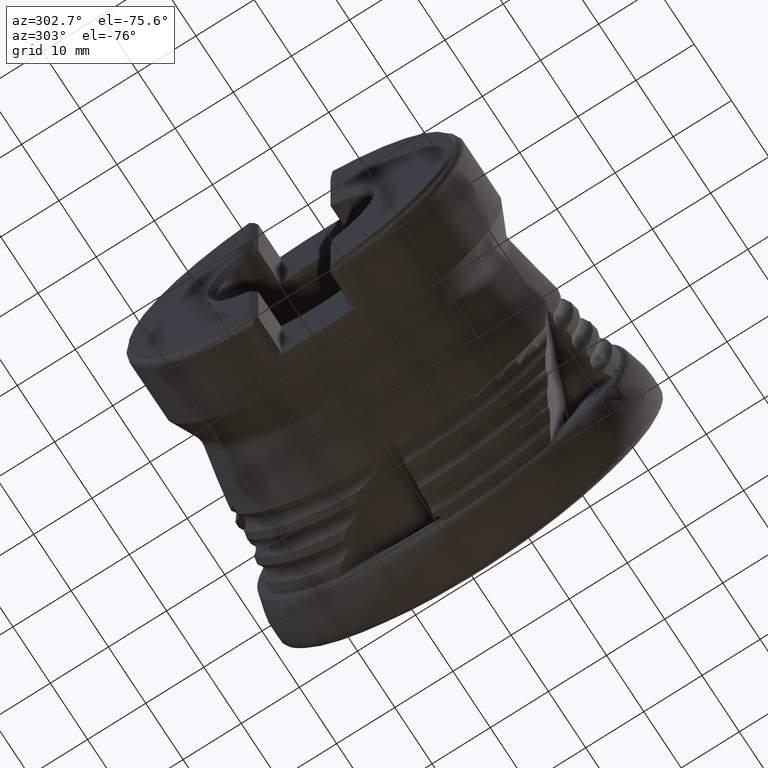
[diagram: clean part render]
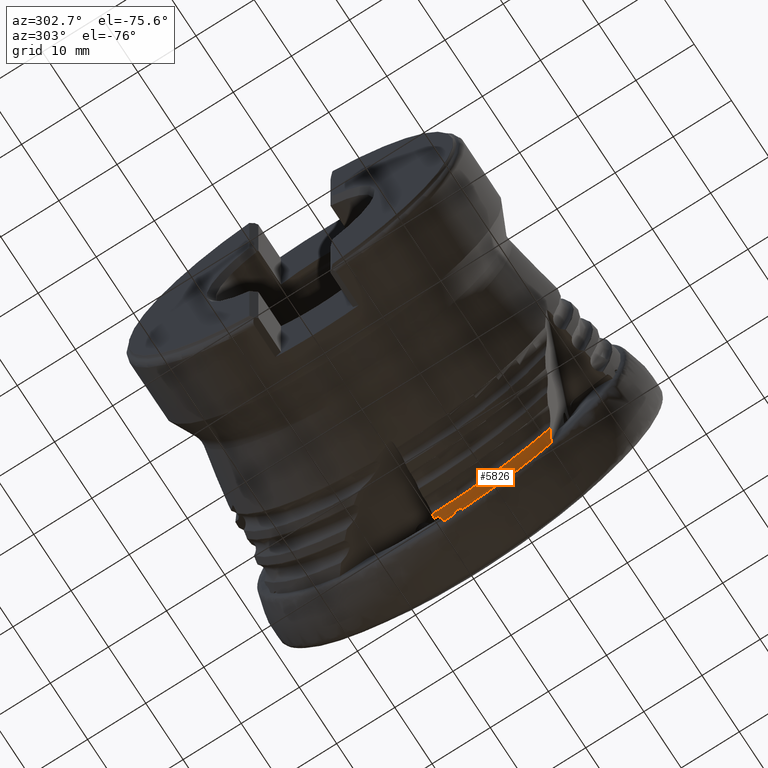
[diagram: same view with one face highlighted and labeled with its STEP entity id]
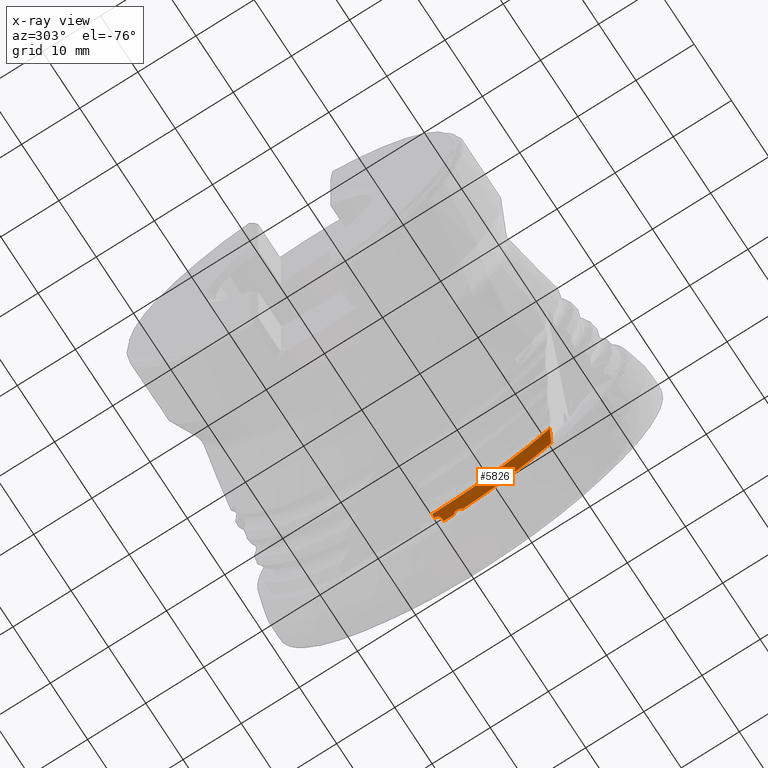
[diagram: x-ray of the same camera — body ghosted, the highlighted face saturated]
A machine part, auxiliary view. The second image highlights one B-rep face of the part: STEP entity #5826.
The next image is the same camera in x-ray: the body ghosted, the highlighted face saturated — about 0% of this face is hidden behind the body in this view.
In plain terms, the highlighted conical surface has half-angle 10.764 deg.
Its self-contained STEP definition (entity closure, byte-faithful):
#48 = CARTESIAN_POINT ( 'NONE',  ( -8.907187607036226100, -0.4925337859918906800, -30.94311440720431600 ) ) ;
#107 = CONICAL_SURFACE ( 'NONE', #2814, 31.10999999999999900, 0.1878754195888589200 ) ;
#133 = VERTEX_POINT ( 'NONE', #10110 ) ;
#525 = CARTESIAN_POINT ( 'NONE',  ( -9.168861643509844200, -2.840369341442003000, -30.76678678565905000 ) ) ;
#602 = CARTESIAN_POINT ( 'NONE',  ( -9.901042179049916600, 0.2399226507166629100, -30.75714860528538400 ) ) ;
#631 = CARTESIAN_POINT ( 'NONE',  ( -8.829917854519301600, -3.741871356822218600, -30.73478072638814500 ) ) ;
#728 = CARTESIAN_POINT ( 'NONE',  ( -9.914278806200638200, 0.4394854351953586000, -30.75242763919932900 ) ) ;
#749 = EDGE_CURVE ( 'NONE', #3368, #133, #5546, .T. ) ;
#879 = CARTESIAN_POINT ( 'NONE',  ( -10.52494134240437500, -19.84805109655290100, -23.34163660555354600 ) ) ;
#909 = CIRCLE ( 'NONE', #5861, 30.96172391114821900 ) ;
#1021 = CARTESIAN_POINT ( 'NONE',  ( -10.52494134240438100, 0.0000000000000000000, 0.0000000000000000000 ) ) ;
#1229 = CARTESIAN_POINT ( 'NONE',  ( -9.901042179049916600, 0.2399226507166629100, -30.75714860528538400 ) ) ;
#1368 = CARTESIAN_POINT ( 'NONE',  ( -9.138202026350185700, -3.268629727231398400, -30.73003867543300100 ) ) ;
#1419 = AXIS2_PLACEMENT_3D ( 'NONE', #1021, #7028, #1871 ) ;
#1451 = EDGE_CURVE ( 'NONE', #6334, #8030, #11168, .T. ) ;
#1785 = CARTESIAN_POINT ( 'NONE',  ( -9.061726263248795400, -0.5033401815428679700, -30.91355559229241100 ) ) ;
#1871 = DIRECTION ( 'NONE',  ( 0.0000000000000000000, 0.0000000000000000000, -1.000000000000000000 ) ) ;
#2083 = CARTESIAN_POINT ( 'NONE',  ( -9.866610701017775000, 0.03247187981194147400, -30.76475641392269700 ) ) ;
#2228 = CARTESIAN_POINT ( 'NONE',  ( -8.935586956124522500, -3.647118482185248500, -30.72607872427344600 ) ) ;
#2338 = B_SPLINE_CURVE_WITH_KNOTS ( 'NONE', 3,
 ( #1229, #6388, #2083, #8122, #2945, #8983, #3806, #9842 ),
 .UNSPECIFIED., .F., .F.,
 ( 4, 2, 2, 4 ),
 ( 3.577867169202164600E-018, 0.0003125698558297747300, 0.0006251397116595461100, 0.001250279423319089800 ),
 .UNSPECIFIED. ) ;
#2388 = DIRECTION ( 'NONE',  ( 1.000000000000000000, 3.736410698672604400E-015, -0.0000000000000000000 ) ) ;
#2441 = DIRECTION ( 'NONE',  ( 1.000000000000000000, 3.736410698672604400E-015, -0.0000000000000000000 ) ) ;
#2569 = CARTESIAN_POINT ( 'NONE',  ( -8.829917854519248300, -18.99229175526006600, -24.45242731168517700 ) ) ;
#2814 = AXIS2_PLACEMENT_3D ( 'NONE', #7649, #6844, #7729 ) ;
#2945 = CARTESIAN_POINT ( 'NONE',  ( -9.710373210912232300, -0.2397032762371657200, -30.79347692279681000 ) ) ;
#2972 = VERTEX_POINT ( 'NONE', #631 ) ;
#3368 = VERTEX_POINT ( 'NONE', #5279 ) ;
#3446 = EDGE_CURVE ( 'NONE', #4203, #2972, #909, .T. ) ;
#3471 = ORIENTED_EDGE ( 'NONE', *, *, #4285, .F. ) ;
#3582 = EDGE_CURVE ( 'NONE', #8030, #133, #9220, .T. ) ;
#3805 = ORIENTED_EDGE ( 'NONE', *, *, #8949, .F. ) ;
#3806 = CARTESIAN_POINT ( 'NONE',  ( -9.268852852633154200, -0.5178238836072460700, -30.87393614228257700 ) ) ;
#3995 = CARTESIAN_POINT ( 'NONE',  ( -9.905486636041716900, 0.3064485073215248400, -30.75578467198907300 ) ) ;
#4111 = EDGE_CURVE ( 'NONE', #9617, #2972, #4160, .T. ) ;
#4160 = B_SPLINE_CURVE_WITH_KNOTS ( 'NONE', 3,
 ( #9092, #4783, #10828, #5656, #525, #6531, #1368, #7387, #2228, #8275 ),
 .UNSPECIFIED., .F., .F.,
 ( 4, 2, 2, 2, 4 ),
 ( 0.0008497964193301971900, 0.001276275197781202800, 0.001702753976232208300, 0.002129232754683213900, 0.002555711533134219500 ),
 .UNSPECIFIED. ) ;
#4203 = VERTEX_POINT ( 'NONE', #5773 ) ;
#4268 = CARTESIAN_POINT ( 'NONE',  ( -10.52494134240438100, 0.3967837508653000400, -30.63690086174092300 ) ) ;
#4285 = EDGE_CURVE ( 'NONE', #9617, #6871, #6820, .T. ) ;
#4442 = CARTESIAN_POINT ( 'NONE',  ( -9.061726263248795400, -0.5033401815428679700, -30.91355559229241100 ) ) ;
#4590 = ORIENTED_EDGE ( 'NONE', *, *, #6455, .F. ) ;
#4783 = CARTESIAN_POINT ( 'NONE',  ( -8.935425067085956700, -2.326477001230511400, -30.85421891155813200 ) ) ;
#5020 = ORIENTED_EDGE ( 'NONE', *, *, #1451, .F. ) ;
#5148 = B_SPLINE_CURVE_WITH_KNOTS ( 'NONE', 3,
 ( #10344, #48, #6936, #1785 ),
 .UNSPECIFIED., .F., .F.,
 ( 4, 4 ),
 ( 0.0005540647907905239400, 0.0007906309979566094500 ),
 .UNSPECIFIED. ) ;
#5157 = ORIENTED_EDGE ( 'NONE', *, *, #10472, .T. ) ;
#5248 = ORIENTED_EDGE ( 'NONE', *, *, #3582, .F. ) ;
#5279 = CARTESIAN_POINT ( 'NONE',  ( -10.52494134240437500, -19.84805109655290100, -23.34163660555354600 ) ) ;
#5546 = CIRCLE ( 'NONE', #1419, 30.63947016116780700 ) ;
#5656 = CARTESIAN_POINT ( 'NONE',  ( -9.138288067966676900, -2.699220917138946500, -30.78526463999691400 ) ) ;
#5773 = CARTESIAN_POINT ( 'NONE',  ( -8.829917854519248300, -18.99229175526006600, -24.45242731168517700 ) ) ;
#5784 = ORIENTED_EDGE ( 'NONE', *, *, #749, .T. ) ;
#5826 = ADVANCED_FACE ( 'NONE', ( #7207 ), #107, .T. ) ;
#5861 = AXIS2_PLACEMENT_3D ( 'NONE', #7557, #2388, #8435 ) ;
#6016 = CARTESIAN_POINT ( 'NONE',  ( -9.976775338434958200, -19.56899443398506100, -23.71572578157927300 ) ) ;
#6118 =( BOUNDED_CURVE ( )  B_SPLINE_CURVE ( 3, ( #879, #6016, #7752, #2569 ),
 .UNSPECIFIED., .F., .T. ) 
 B_SPLINE_CURVE_WITH_KNOTS ( ( 4, 4 ),
 ( 3.577104302579109200, 3.605859837077168200 ),
 .UNSPECIFIED. ) 
 CURVE ( )  GEOMETRIC_REPRESENTATION_ITEM ( )  RATIONAL_B_SPLINE_CURVE ( ( 1.000000000000000000, 0.9999310944566703900, 0.9999310944566703900, 1.000000000000000000 ) ) 
 REPRESENTATION_ITEM ( '' )  );
#6202 = CARTESIAN_POINT ( 'NONE',  ( -9.914278806200638200, 0.4394854351953586000, -30.75242763919932900 ) ) ;
#6334 = VERTEX_POINT ( 'NONE', #9325 ) ;
#6388 = CARTESIAN_POINT ( 'NONE',  ( -9.893998405684815400, 0.1344895105809404100, -30.75931022751324700 ) ) ;
#6455 = EDGE_CURVE ( 'NONE', #6871, #7459, #5148, .T. ) ;
#6531 = CARTESIAN_POINT ( 'NONE',  ( -9.168855269367925900, -3.126516908677580400, -30.73902786385200900 ) ) ;
#6599 = CARTESIAN_POINT ( 'NONE',  ( -9.914278806200638200, 0.4394854351953586000, -30.75242763919932900 ) ) ;
#6775 = ORIENTED_EDGE ( 'NONE', *, *, #4111, .T. ) ;
#6820 = CIRCLE ( 'NONE', #9465, 30.96172391114821900 ) ;
#6844 = DIRECTION ( 'NONE',  ( 1.000000000000000000, -0.0000000000000000000, -0.0000000000000000000 ) ) ;
#6871 = VERTEX_POINT ( 'NONE', #7621 ) ;
#6936 = CARTESIAN_POINT ( 'NONE',  ( -8.984457077044957900, -0.4979369936901652500, -30.92833574518926200 ) ) ;
#7028 = DIRECTION ( 'NONE',  ( 1.000000000000000000, -0.0000000000000000000, -0.0000000000000000000 ) ) ;
#7038 = EDGE_LOOP ( 'NONE', ( #7838, #3805, #5784, #5248, #5020, #5157, #4590, #3471, #6775 ) ) ;
#7207 = FACE_OUTER_BOUND ( 'NONE', #7038, .T. ) ;
#7387 = CARTESIAN_POINT ( 'NONE',  ( -9.021999422848876900, -3.528583377935763800, -30.72351278033957900 ) ) ;
#7459 = VERTEX_POINT ( 'NONE', #4442 ) ;
#7557 = CARTESIAN_POINT ( 'NONE',  ( -8.829917854519314000, -3.299219954002622000E-014, 0.0000000000000000000 ) ) ;
#7617 = CARTESIAN_POINT ( 'NONE',  ( -8.829917854519314000, -3.299219954002622000E-014, 0.0000000000000000000 ) ) ;
#7621 = CARTESIAN_POINT ( 'NONE',  ( -8.829917854519308700, -0.4871305585387197300, -30.95789158468490500 ) ) ;
#7649 = CARTESIAN_POINT ( 'NONE',  ( -8.049999999999993600, 0.0000000000000000000, 0.0000000000000000000 ) ) ;
#7729 = DIRECTION ( 'NONE',  ( 0.0000000000000000000, 0.0000000000000000000, -1.000000000000000000 ) ) ;
#7752 = CARTESIAN_POINT ( 'NONE',  ( -9.411728574285614700, -19.28372166334552400, -24.08601486526031400 ) ) ;
#7838 = ORIENTED_EDGE ( 'NONE', *, *, #3446, .F. ) ;
#8030 = VERTEX_POINT ( 'NONE', #6202 ) ;
#8122 = CARTESIAN_POINT ( 'NONE',  ( -9.774717636882691400, -0.1552746182910289800, -30.78185232803812000 ) ) ;
#8275 = CARTESIAN_POINT ( 'NONE',  ( -8.829917854519301600, -3.741871356822218600, -30.73478072638814500 ) ) ;
#8435 = DIRECTION ( 'NONE',  ( -3.753876018789672100E-015, 1.000000000000000000, 0.0000000000000000000 ) ) ;
#8491 = DIRECTION ( 'NONE',  ( -3.753876018789672100E-015, 1.000000000000000000, 0.0000000000000000000 ) ) ;
#8949 = EDGE_CURVE ( 'NONE', #3368, #4203, #6118, .T. ) ;
#8983 = CARTESIAN_POINT ( 'NONE',  ( -9.478066486174437700, -0.4453611063909612700, -30.83558693916300800 ) ) ;
#9092 = CARTESIAN_POINT ( 'NONE',  ( -8.829917854519301600, -2.235009604789292700, -30.88095010871049000 ) ) ;
#9220 = B_SPLINE_CURVE_WITH_KNOTS ( 'NONE', 3,
 ( #728, #11150, #9431, #4268 ),
 .UNSPECIFIED., .F., .F.,
 ( 4, 4 ),
 ( 0.001901961771360502800, 0.002524921317901018300 ),
 .UNSPECIFIED. ) ;
#9325 = CARTESIAN_POINT ( 'NONE',  ( -9.901042179049916600, 0.2399226507166629100, -30.75714860528538400 ) ) ;
#9431 = CARTESIAN_POINT ( 'NONE',  ( -10.32138883633658500, 0.4110175286777306700, -30.67541867127493700 ) ) ;
#9465 = AXIS2_PLACEMENT_3D ( 'NONE', #7617, #2441, #8491 ) ;
#9617 = VERTEX_POINT ( 'NONE', #10036 ) ;
#9842 = CARTESIAN_POINT ( 'NONE',  ( -9.061726263248795400, -0.5033401815428679700, -30.91355559229241100 ) ) ;
#10036 = CARTESIAN_POINT ( 'NONE',  ( -8.829917854519301600, -2.235009604789292700, -30.88095010871049000 ) ) ;
#10038 = CARTESIAN_POINT ( 'NONE',  ( -9.909898859700293300, 0.3729696557245055200, -30.75421101141687100 ) ) ;
#10110 = CARTESIAN_POINT ( 'NONE',  ( -10.52494134240438100, 0.3967837508653000400, -30.63690086174092300 ) ) ;
#10344 = CARTESIAN_POINT ( 'NONE',  ( -8.829917854519308700, -0.4871305585387197300, -30.95789158468490500 ) ) ;
#10472 = EDGE_CURVE ( 'NONE', #6334, #7459, #2338, .T. ) ;
#10828 = CARTESIAN_POINT ( 'NONE',  ( -9.021714885673272700, -2.442049686106453800, -30.82896338893821700 ) ) ;
#11150 = CARTESIAN_POINT ( 'NONE',  ( -10.11783465096201000, 0.4252514239187305000, -30.71392756393895200 ) ) ;
#11168 =( BOUNDED_CURVE ( )  B_SPLINE_CURVE ( 3, ( #602, #3995, #10038, #6599 ),
 .UNSPECIFIED., .F., .T. ) 
 B_SPLINE_CURVE_WITH_KNOTS ( ( 4, 4 ),
 ( 2.731405942176750900, 2.737709161278117300 ),
 .UNSPECIFIED. ) 
 CURVE ( )  GEOMETRIC_REPRESENTATION_ITEM ( )  RATIONAL_B_SPLINE_CURVE ( ( 1.000000000000000000, 0.9999966891218204900, 0.9999966891218204900, 1.000000000000000000 ) ) 
 REPRESENTATION_ITEM ( '' )  );